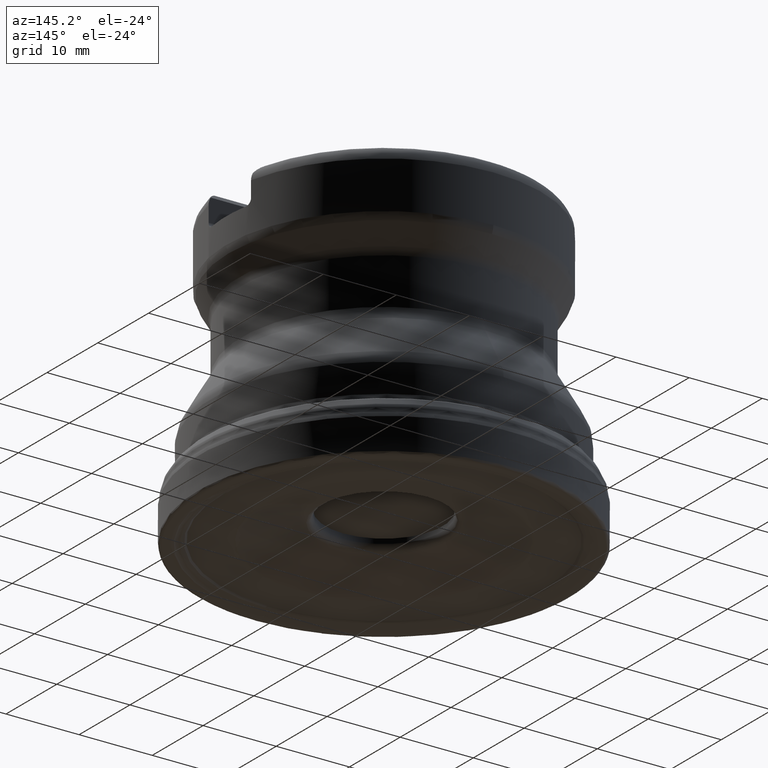
[diagram: clean part render]
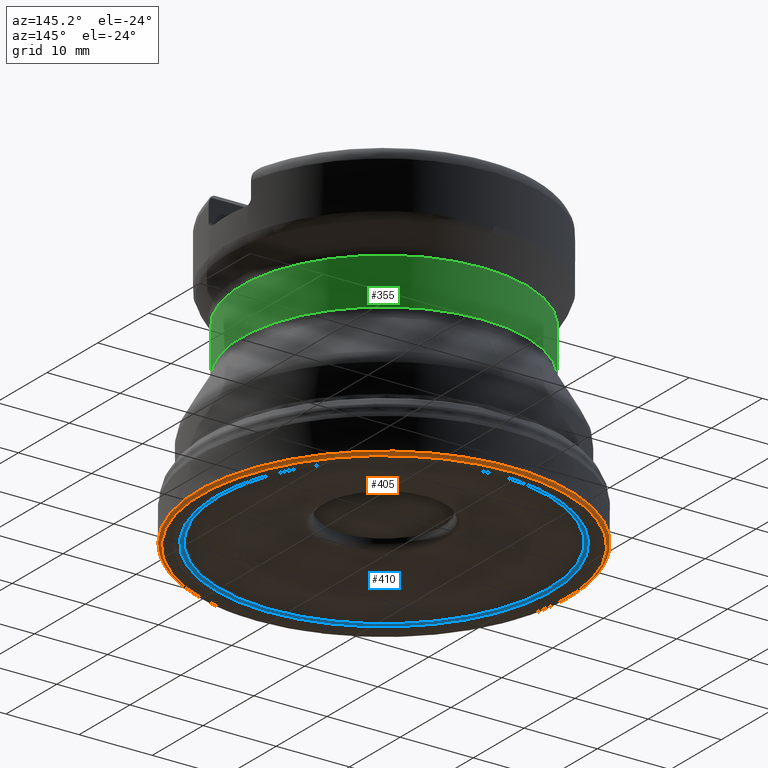
[diagram: same view with three faces highlighted in distinct colors, each labeled with its STEP entity id]
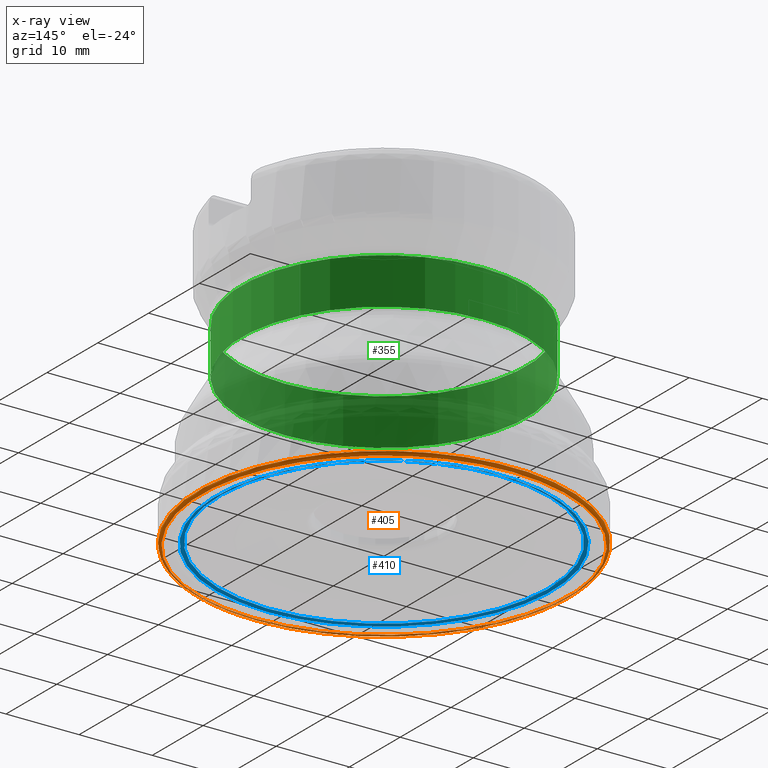
[diagram: x-ray of the same camera — body ghosted, the three highlighted faces saturated]
A machine part, auxiliary view with three faces highlighted in distinct colors.
The next image is the same camera in x-ray (body ghosted, the three faces saturated) — at least one of them is partly hidden behind the body in this view.
Their STEP definitions:

[orange] entity #405 — the highlighted face is a SurfaceOfRevolution surface.
#113=SURFACE_OF_REVOLUTION('',#1148,#132);
#132=AXIS1_PLACEMENT('',#2326,#1542);
#239=FACE_BOUND('',#561,.T.);
#240=FACE_BOUND('',#562,.T.);
#405=ADVANCED_FACE('',(#239,#240),#113,.T.);
#561=EDGE_LOOP('',(#795));
#562=EDGE_LOOP('',(#796));
#795=ORIENTED_EDGE('',*,*,#1017,.T.);
#796=ORIENTED_EDGE('',*,*,#1018,.F.);
#900=VERTEX_POINT('',#2299);
#901=VERTEX_POINT('',#2314);
#1017=EDGE_CURVE('',#900,#900,#1082,.T.);
#1018=EDGE_CURVE('',#901,#901,#1083,.T.);
#1082=CIRCLE('',#1269,25.4000003991563);
#1083=CIRCLE('',#1270,25.0079461250179);
#1148=B_SPLINE_CURVE_WITH_KNOTS('',3,(#2315,#2316,#2317,#2318,#2319,#2320,
#2321,#2322,#2323,#2324,#2325),.UNSPECIFIED.,.F.,.F.,(4,1,1,1,1,1,1,1,4),
(0.,0.125,0.25,0.375,0.5,0.625,0.75,0.875,1.),.UNSPECIFIED.);
#1269=AXIS2_PLACEMENT_3D('',#2298,#1537,#1538);
#1270=AXIS2_PLACEMENT_3D('',#2313,#1540,#1541);
#1537=DIRECTION('',(0.,-1.17145536458252E-15,-1.));
#1538=DIRECTION('',(0.,-1.,1.17170666011941E-15));
#1540=DIRECTION('',(0.,-1.17145536458252E-15,-1.));
#1541=DIRECTION('',(0.,-1.,1.17145536457386E-15));
#1542=DIRECTION('',(0.,1.17145536458252E-15,1.));
#2298=CARTESIAN_POINT('',(0.,4.57306866661228E-16,0.39037498182801));
#2299=CARTESIAN_POINT('',(0.,-25.4000003991563,0.39037498182804));
#2313=CARTESIAN_POINT('',(0.,-6.40727938771144E-24,-5.46950364600091E-9));
#2314=CARTESIAN_POINT('',(0.,-25.0079461250179,-5.46947435030826E-9));
#2315=CARTESIAN_POINT('',(24.7327185940879,-3.7,5.22038131178334E-15));
#2316=CARTESIAN_POINT('',(24.7562443212352,-3.70002255179679,-0.000127897595126477));
#2317=CARTESIAN_POINT('',(24.8049241146009,-3.69868163362011,0.00383792694743765));
#2318=CARTESIAN_POINT('',(24.8795287962233,-3.69367988261827,0.024557575864416));
#2319=CARTESIAN_POINT('',(24.9514018206903,-3.68684067347839,0.0608995380093175));
#2320=CARTESIAN_POINT('',(25.0158390053678,-3.67912498719125,0.111919895201283));
#2321=CARTESIAN_POINT('',(25.0686705106804,-3.67114547580092,0.174817786047111));
#2322=CARTESIAN_POINT('',(25.1071338796538,-3.66309171811604,0.245396244550805));
#2323=CARTESIAN_POINT('',(25.1303149534269,-3.65478415745622,0.318943652937191));
#2324=CARTESIAN_POINT('',(25.1361514769643,-3.6488053353119,0.36708021810693));
#2325=CARTESIAN_POINT('',(25.1370127353962,-3.64562902907989,0.390374981828014));
#2326=CARTESIAN_POINT('',(0.,0.,0.));

[blue] entity #410 — the highlighted face is a SurfaceOfRevolution surface.
#118=SURFACE_OF_REVOLUTION('',#1151,#137);
#137=AXIS1_PLACEMENT('',#2360,#1559);
#249=FACE_BOUND('',#571,.T.);
#250=FACE_BOUND('',#572,.T.);
#410=ADVANCED_FACE('',(#249,#250),#118,.T.);
#571=EDGE_LOOP('',(#805));
#572=EDGE_LOOP('',(#806));
#805=ORIENTED_EDGE('',*,*,#1022,.T.);
#806=ORIENTED_EDGE('',*,*,#1023,.F.);
#905=VERTEX_POINT('',#2350);
#906=VERTEX_POINT('',#2354);
#1022=EDGE_CURVE('',#905,#905,#1087,.T.);
#1023=EDGE_CURVE('',#906,#906,#1088,.T.);
#1087=CIRCLE('',#1274,22.9746438572229);
#1088=CIRCLE('',#1275,22.472681942838);
#1151=B_SPLINE_CURVE_WITH_KNOTS('',3,(#2355,#2356,#2357,#2358,#2359),
 .UNSPECIFIED.,.F.,.F.,(4,1,4),(0.,0.5,1.),.UNSPECIFIED.);
#1274=AXIS2_PLACEMENT_3D('',#2349,#1553,#1554);
#1275=AXIS2_PLACEMENT_3D('',#2353,#1557,#1558);
#1553=DIRECTION('',(0.,-1.17145536458252E-15,-1.));
#1554=DIRECTION('',(0.,-1.,1.1703430113972E-15));
#1557=DIRECTION('',(0.,-1.17145536458252E-15,-1.));
#1558=DIRECTION('',(0.,-1.,1.1723617527455E-15));
#1559=DIRECTION('',(0.,1.17145536458252E-15,1.));
#2349=CARTESIAN_POINT('',(0.,3.74485261082095E-16,0.319675228270905));
#2350=CARTESIAN_POINT('',(0.,-22.9746438572229,0.319675228270932));
#2353=CARTESIAN_POINT('',(0.,5.57815151485892E-16,0.476172774781464));
#2354=CARTESIAN_POINT('',(0.,-22.472681942838,0.476172774781491));
#2355=CARTESIAN_POINT('',(22.2348042719096,-3.2611235187836,0.476172771109155));
#2356=CARTESIAN_POINT('',(22.3100594399507,-3.26131864474453,0.432599169457018));
#2357=CARTESIAN_POINT('',(22.4754303143959,-3.28069251214412,0.361548824000243));
#2358=CARTESIAN_POINT('',(22.6462202099644,-3.33080706046857,0.32846940399339));
#2359=CARTESIAN_POINT('',(22.7274481176852,-3.36115492415279,0.319675228270909));
#2360=CARTESIAN_POINT('',(0.,0.,0.));

[green] entity #355 — the highlighted cylindrical surface (bore or boss wall) has radius 19.5011 mm, axis along (0, 0, 1).
#147=CYLINDRICAL_SURFACE('',#1197,19.5011);
#171=FACE_BOUND('',#477,.T.);
#172=FACE_BOUND('',#478,.T.);
#355=ADVANCED_FACE('',(#171,#172),#147,.T.);
#477=EDGE_LOOP('',(#643));
#478=EDGE_LOOP('',(#644));
#643=ORIENTED_EDGE('',*,*,#964,.T.);
#644=ORIENTED_EDGE('',*,*,#965,.T.);
#861=VERTEX_POINT('',#1979);
#862=VERTEX_POINT('',#1981);
#964=EDGE_CURVE('',#861,#861,#1049,.T.);
#965=EDGE_CURVE('',#862,#862,#1050,.T.);
#1049=CIRCLE('',#1195,19.5011);
#1050=CIRCLE('',#1196,19.5011);
#1195=AXIS2_PLACEMENT_3D('',#1978,#1371,#1372);
#1196=AXIS2_PLACEMENT_3D('',#1980,#1373,#1374);
#1197=AXIS2_PLACEMENT_3D('',#1982,#1375,#1376);
#1371=DIRECTION('',(0.,1.17145536458252E-15,1.));
#1372=DIRECTION('',(0.,-1.,1.24537224380549E-15));
#1373=DIRECTION('',(0.,-1.17145536458252E-15,-1.));
#1374=DIRECTION('',(0.,-1.,1.24537224380549E-15));
#1375=DIRECTION('',(0.,1.17145536458252E-15,1.));
#1376=DIRECTION('',(0.,-1.,1.17145536458252E-15));
#1978=CARTESIAN_POINT('',(0.,2.42844402150927E-14,20.7301455516805));
#1979=CARTESIAN_POINT('',(0.,-19.5011,20.7301455516806));
#1980=CARTESIAN_POINT('',(0.,3.17206683621656E-14,27.078));
#1981=CARTESIAN_POINT('',(0.,-19.5011,27.078));
#1982=CARTESIAN_POINT('',(0.,0.,0.));